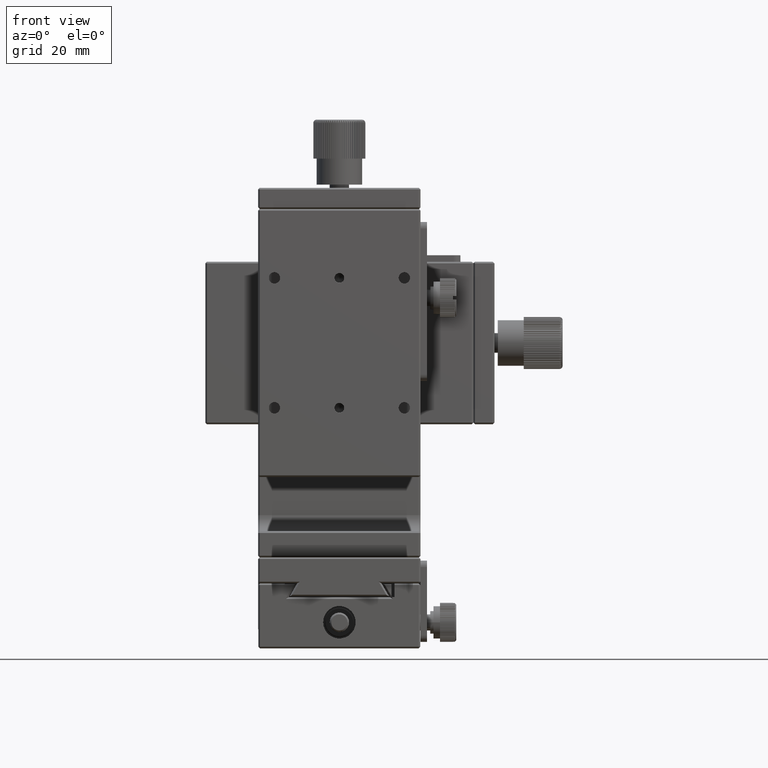
[diagram: clean part render]
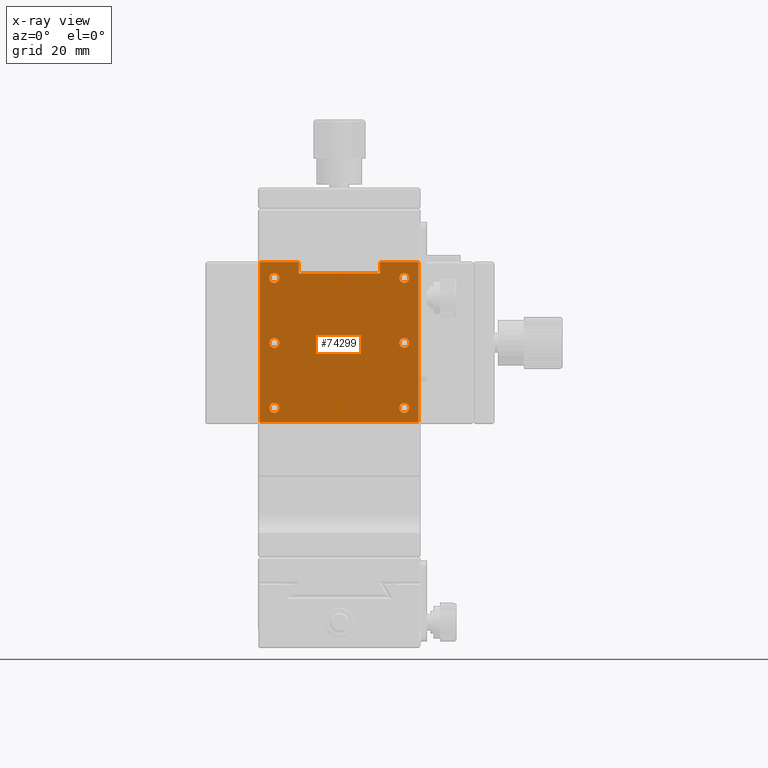
[diagram: x-ray — body ghosted, one internal face saturated and labeled with its STEP entity id]
A machine part, front view, then the same camera in x-ray: the body is ghosted and one INTERNAL B-rep face — a face not visible from any outside direction — is saturated and labeled: STEP entity #74299.
In plain terms, the highlighted planar face has unit normal (0, -1, 0).
Its self-contained STEP definition (entity closure, byte-faithful):
#120 = CARTESIAN_POINT ( 'NONE',  ( -20.00000000000000000, 28.00000000000000000, 42.75000000000000000 ) ) ;
#831 = CARTESIAN_POINT ( 'NONE',  ( -12.50000000000000000, 28.00000000000000000, 66.15000000000000568 ) ) ;
#1642 = CARTESIAN_POINT ( 'NONE',  ( 12.50000000000000000, 27.99999999999999645, 66.15000000000000568 ) ) ;
#2757 = VERTEX_POINT ( 'NONE', #19195 ) ;
#2835 = CARTESIAN_POINT ( 'NONE',  ( 24.89999999999999858, 28.00000000000000000, 66.15000000000000568 ) ) ;
#3528 = VERTEX_POINT ( 'NONE', #28389 ) ;
#3607 = CARTESIAN_POINT ( 'NONE',  ( 20.00000000000000000, 28.00000000003865352, 22.74999999998508926 ) ) ;
#3863 = CARTESIAN_POINT ( 'NONE',  ( 24.39999999999999858, 27.99999999999999645, 66.15000000000000568 ) ) ;
#4062 = DIRECTION ( 'NONE',  ( 0.000000000000000000, -0.000000000000000000, -1.000000000000000000 ) ) ;
#4381 = EDGE_CURVE ( 'NONE', #2757, #2757, #62870, .T. ) ;
#5603 = ORIENTED_EDGE ( 'NONE', *, *, #27980, .F. ) ;
#6519 = FACE_BOUND ( 'NONE', #36447, .T. ) ;
#7120 = VERTEX_POINT ( 'NONE', #29732 ) ;
#7744 = DIRECTION ( 'NONE',  ( 0.000000000000000000, 1.000000000000000000, 0.000000000000000000 ) ) ;
#9633 = ORIENTED_EDGE ( 'NONE', *, *, #72326, .F. ) ;
#10740 = EDGE_CURVE ( 'NONE', #3528, #3528, #64651, .T. ) ;
#10859 = CARTESIAN_POINT ( 'NONE',  ( 24.89999999999999858, 28.00000000000000000, 66.15000000000000568 ) ) ;
#10929 = VERTEX_POINT ( 'NONE', #3607 ) ;
#11274 = DIRECTION ( 'NONE',  ( 0.000000000000000000, 0.000000000000000000, 1.000000000000000000 ) ) ;
#11473 = VERTEX_POINT ( 'NONE', #3863 ) ;
#12246 = FACE_BOUND ( 'NONE', #14822, .T. ) ;
#13030 = VERTEX_POINT ( 'NONE', #52471 ) ;
#13669 = CIRCLE ( 'NONE', #56663, 1.500000000000001332 ) ;
#14822 = EDGE_LOOP ( 'NONE', ( #79144 ) ) ;
#15032 = EDGE_LOOP ( 'NONE', ( #18590 ) ) ;
#17241 = VECTOR ( 'NONE', #73988, 1000.000000000000000 ) ;
#17245 = EDGE_CURVE ( 'NONE', #51847, #34690, #35056, .T. ) ;
#17547 = VERTEX_POINT ( 'NONE', #30578 ) ;
#18219 = DIRECTION ( 'NONE',  ( 0.000000000000000000, 0.000000000000000000, 1.000000000000000000 ) ) ;
#18590 = ORIENTED_EDGE ( 'NONE', *, *, #54522, .F. ) ;
#19195 = CARTESIAN_POINT ( 'NONE',  ( 20.00000000000000000, 28.00000000000000000, 42.75000000000000000 ) ) ;
#20448 = CARTESIAN_POINT ( 'NONE',  ( 20.00000000000000000, 27.99999999998181011, 62.75000000000554934 ) ) ;
#21735 = AXIS2_PLACEMENT_3D ( 'NONE', #72824, #49598, #18219 ) ;
#23076 = EDGE_CURVE ( 'NONE', #13030, #48745, #66457, .T. ) ;
#24036 = DIRECTION ( 'NONE',  ( 0.000000000000000000, -0.000000000000000000, -1.000000000000000000 ) ) ;
#24253 = LINE ( 'NONE', #49133, #17241 ) ;
#24292 = DIRECTION ( 'NONE',  ( 0.000000000000000000, 1.000000000000000000, 0.000000000000000000 ) ) ;
#25692 = EDGE_CURVE ( 'NONE', #58176, #11473, #42454, .T. ) ;
#25769 = VERTEX_POINT ( 'NONE', #120 ) ;
#26311 = EDGE_LOOP ( 'NONE', ( #47260, #28578, #29123, #9633, #41865, #41247, #50097, #60630 ) ) ;
#27228 = DIRECTION ( 'NONE',  ( 0.000000000000000000, 1.000000000000000000, 0.000000000000000000 ) ) ;
#27707 = AXIS2_PLACEMENT_3D ( 'NONE', #36157, #24292, #11274 ) ;
#27980 = EDGE_CURVE ( 'NONE', #25769, #25769, #13669, .T. ) ;
#28371 = VECTOR ( 'NONE', #50331, 1000.000000000000000 ) ;
#28389 = CARTESIAN_POINT ( 'NONE',  ( -20.00000000000000000, 28.00000000003865352, 22.74999999998508926 ) ) ;
#28578 = ORIENTED_EDGE ( 'NONE', *, *, #36416, .F. ) ;
#29123 = ORIENTED_EDGE ( 'NONE', *, *, #23076, .F. ) ;
#29369 = ORIENTED_EDGE ( 'NONE', *, *, #4381, .F. ) ;
#29586 = CARTESIAN_POINT ( 'NONE',  ( -12.50000000000000355, 28.00000000000000000, 66.15000000000000568 ) ) ;
#29732 = CARTESIAN_POINT ( 'NONE',  ( -12.50000000000000000, 28.00000000000000000, 62.65000000000001279 ) ) ;
#30578 = CARTESIAN_POINT ( 'NONE',  ( -20.00000000000000000, 27.99999999998181011, 62.75000000000554934 ) ) ;
#31446 = EDGE_LOOP ( 'NONE', ( #64745 ) ) ;
#31568 = CIRCLE ( 'NONE', #54985, 1.499999999985082599 ) ;
#32074 = AXIS2_PLACEMENT_3D ( 'NONE', #47366, #42079, #73826 ) ;
#32783 = VECTOR ( 'NONE', #4062, 1000.000000000000000 ) ;
#33402 = DIRECTION ( 'NONE',  ( 0.000000000000000000, -1.000000000000000000, 0.000000000000000000 ) ) ;
#33940 = CARTESIAN_POINT ( 'NONE',  ( -24.40000000000000213, 28.00000000000000000, 16.84999999999999432 ) ) ;
#34078 = LINE ( 'NONE', #52426, #36637 ) ;
#34690 = VERTEX_POINT ( 'NONE', #74157 ) ;
#35056 = LINE ( 'NONE', #59910, #32783 ) ;
#36157 = CARTESIAN_POINT ( 'NONE',  ( 20.00000000000000000, 28.00000000000000000, 41.25000000000000000 ) ) ;
#36416 = EDGE_CURVE ( 'NONE', #48745, #58176, #34078, .T. ) ;
#36447 = EDGE_LOOP ( 'NONE', ( #67491 ) ) ;
#36637 = VECTOR ( 'NONE', #71132, 1000.000000000000000 ) ;
#37128 = FACE_BOUND ( 'NONE', #31446, .T. ) ;
#37873 = DIRECTION ( 'NONE',  ( -0.000000000000000000, 1.000000000000000000, 0.000000000000000000 ) ) ;
#38322 = PLANE ( 'NONE',  #53522 ) ;
#38428 = EDGE_CURVE ( 'NONE', #77496, #77496, #75477, .T. ) ;
#41247 = ORIENTED_EDGE ( 'NONE', *, *, #69683, .F. ) ;
#41843 = EDGE_LOOP ( 'NONE', ( #5603 ) ) ;
#41865 = ORIENTED_EDGE ( 'NONE', *, *, #63519, .F. ) ;
#42079 = DIRECTION ( 'NONE',  ( 0.000000000000000000, 1.000000000000000000, 0.000000000000000000 ) ) ;
#42454 = LINE ( 'NONE', #67299, #52924 ) ;
#43266 = DIRECTION ( 'NONE',  ( -0.000000000000000000, 0.000000000000000000, 1.000000000000000000 ) ) ;
#44381 = CARTESIAN_POINT ( 'NONE',  ( 20.00000000000000000, 27.99999999998181011, 61.25000000000000711 ) ) ;
#44435 = FACE_BOUND ( 'NONE', #15032, .T. ) ;
#45421 = LINE ( 'NONE', #51941, #28371 ) ;
#46046 = EDGE_CURVE ( 'NONE', #17547, #17547, #63389, .T. ) ;
#47260 = ORIENTED_EDGE ( 'NONE', *, *, #25692, .F. ) ;
#47366 = CARTESIAN_POINT ( 'NONE',  ( -20.00000000000000000, 28.00000000003865352, 21.25000000000000355 ) ) ;
#47939 = LINE ( 'NONE', #29586, #68549 ) ;
#48745 = VERTEX_POINT ( 'NONE', #33940 ) ;
#49133 = CARTESIAN_POINT ( 'NONE',  ( 24.89999999999999858, 28.00000000000000000, 66.15000000000000568 ) ) ;
#49598 = DIRECTION ( 'NONE',  ( -0.000000000000000000, 1.000000000000000000, 0.000000000000000000 ) ) ;
#50097 = ORIENTED_EDGE ( 'NONE', *, *, #17245, .F. ) ;
#50331 = DIRECTION ( 'NONE',  ( -1.000000000000000000, -0.000000000000000000, -0.000000000000000000 ) ) ;
#50940 = FACE_OUTER_BOUND ( 'NONE', #26311, .T. ) ;
#51847 = VERTEX_POINT ( 'NONE', #1642 ) ;
#51941 = CARTESIAN_POINT ( 'NONE',  ( 24.89999999999999858, 28.00000000000000000, 62.65000000000001279 ) ) ;
#52426 = CARTESIAN_POINT ( 'NONE',  ( 24.89999999999999858, 28.00000000000000000, 16.85000000000000497 ) ) ;
#52471 = CARTESIAN_POINT ( 'NONE',  ( -24.40000000000000568, 27.99999999999999645, 66.15000000000000568 ) ) ;
#52924 = VECTOR ( 'NONE', #43266, 1000.000000000000000 ) ;
#53522 = AXIS2_PLACEMENT_3D ( 'NONE', #2835, #33402, #64385 ) ;
#54522 = EDGE_CURVE ( 'NONE', #10929, #10929, #31568, .T. ) ;
#54985 = AXIS2_PLACEMENT_3D ( 'NONE', #64323, #27228, #64723 ) ;
#56663 = AXIS2_PLACEMENT_3D ( 'NONE', #69292, #7744, #68487 ) ;
#58176 = VERTEX_POINT ( 'NONE', #76896 ) ;
#59357 = DIRECTION ( 'NONE',  ( -0.000000000000000000, 0.000000000000000000, 1.000000000000000000 ) ) ;
#59910 = CARTESIAN_POINT ( 'NONE',  ( 12.50000000000000000, 28.00000000000000000, 66.15000000000000568 ) ) ;
#60630 = ORIENTED_EDGE ( 'NONE', *, *, #73890, .F. ) ;
#61559 = CARTESIAN_POINT ( 'NONE',  ( -24.39999999999999858, 28.00000000000000000, 66.15000000000000568 ) ) ;
#61967 = FACE_BOUND ( 'NONE', #63567, .T. ) ;
#62870 = CIRCLE ( 'NONE', #27707, 1.500000000000001332 ) ;
#63130 = DIRECTION ( 'NONE',  ( 0.000000000000000000, 0.000000000000000000, 1.000000000000000000 ) ) ;
#63389 = CIRCLE ( 'NONE', #21735, 1.500000000005545564 ) ;
#63519 = EDGE_CURVE ( 'NONE', #7120, #74287, #47939, .T. ) ;
#63567 = EDGE_LOOP ( 'NONE', ( #29369 ) ) ;
#64323 = CARTESIAN_POINT ( 'NONE',  ( 20.00000000000000000, 28.00000000003865352, 21.25000000000000355 ) ) ;
#64385 = DIRECTION ( 'NONE',  ( 0.000000000000000000, -0.000000000000000000, -1.000000000000000000 ) ) ;
#64651 = CIRCLE ( 'NONE', #32074, 1.499999999985082599 ) ;
#64723 = DIRECTION ( 'NONE',  ( 0.000000000000000000, 0.000000000000000000, 1.000000000000000000 ) ) ;
#64745 = ORIENTED_EDGE ( 'NONE', *, *, #46046, .F. ) ;
#66457 = LINE ( 'NONE', #61559, #69522 ) ;
#66704 = LINE ( 'NONE', #10859, #74290 ) ;
#67299 = CARTESIAN_POINT ( 'NONE',  ( 24.39999999999999858, 28.00000000000000000, 66.15000000000000568 ) ) ;
#67491 = ORIENTED_EDGE ( 'NONE', *, *, #38428, .F. ) ;
#68487 = DIRECTION ( 'NONE',  ( 0.000000000000000000, 0.000000000000000000, 1.000000000000000000 ) ) ;
#68549 = VECTOR ( 'NONE', #59357, 1000.000000000000000 ) ;
#69276 = FACE_BOUND ( 'NONE', #41843, .T. ) ;
#69292 = CARTESIAN_POINT ( 'NONE',  ( -20.00000000000000000, 28.00000000000000000, 41.25000000000000000 ) ) ;
#69522 = VECTOR ( 'NONE', #24036, 1000.000000000000000 ) ;
#69683 = EDGE_CURVE ( 'NONE', #34690, #7120, #45421, .T. ) ;
#71132 = DIRECTION ( 'NONE',  ( 1.000000000000000000, 0.000000000000000000, 0.000000000000000000 ) ) ;
#72326 = EDGE_CURVE ( 'NONE', #74287, #13030, #66704, .T. ) ;
#72824 = CARTESIAN_POINT ( 'NONE',  ( -20.00000000000000000, 27.99999999998181011, 61.25000000000000711 ) ) ;
#73826 = DIRECTION ( 'NONE',  ( 0.000000000000000000, 0.000000000000000000, 1.000000000000000000 ) ) ;
#73890 = EDGE_CURVE ( 'NONE', #11473, #51847, #24253, .T. ) ;
#73988 = DIRECTION ( 'NONE',  ( -1.000000000000000000, -0.000000000000000000, -0.000000000000000000 ) ) ;
#74157 = CARTESIAN_POINT ( 'NONE',  ( 12.50000000000000000, 27.99999999999999645, 62.65000000000001279 ) ) ;
#74287 = VERTEX_POINT ( 'NONE', #831 ) ;
#74290 = VECTOR ( 'NONE', #78111, 1000.000000000000000 ) ;
#74299 = ADVANCED_FACE ( 'NONE', ( #50940, #44435, #6519, #12246, #37128, #61967, #69276 ), #38322, .F. ) ;
#75477 = CIRCLE ( 'NONE', #79350, 1.500000000005545564 ) ;
#76896 = CARTESIAN_POINT ( 'NONE',  ( 24.39999999999999858, 28.00000000000000000, 16.85000000000000142 ) ) ;
#77496 = VERTEX_POINT ( 'NONE', #20448 ) ;
#78111 = DIRECTION ( 'NONE',  ( -1.000000000000000000, -0.000000000000000000, -0.000000000000000000 ) ) ;
#79144 = ORIENTED_EDGE ( 'NONE', *, *, #10740, .F. ) ;
#79350 = AXIS2_PLACEMENT_3D ( 'NONE', #44381, #37873, #63130 ) ;